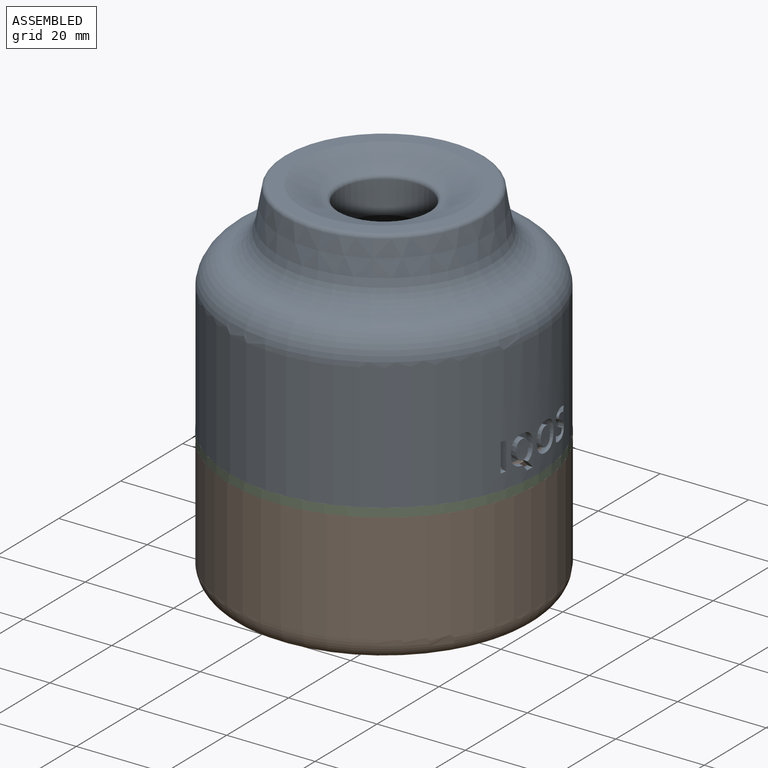
[diagram: assembled view]
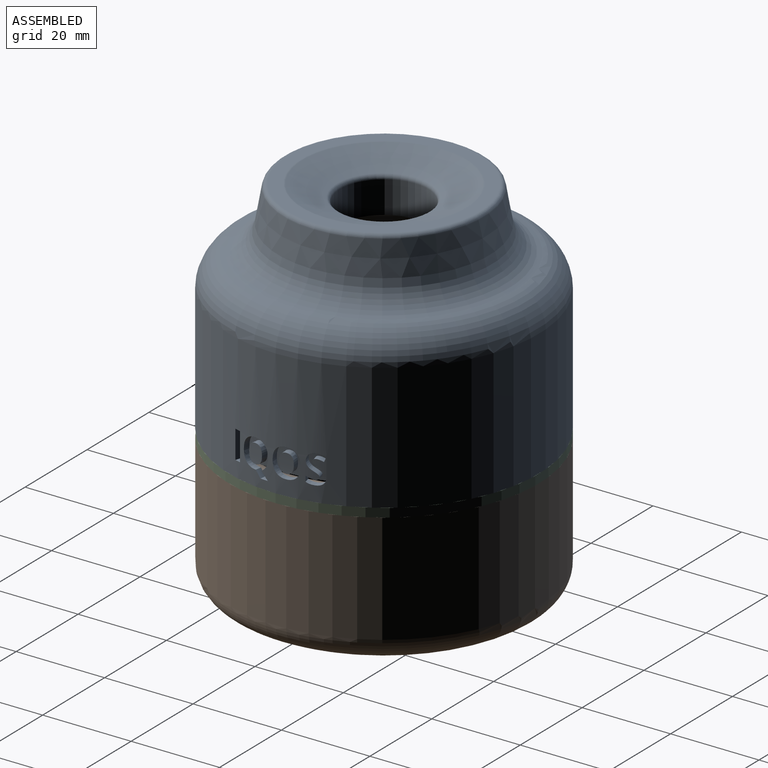
[diagram: assembled view, second angle]
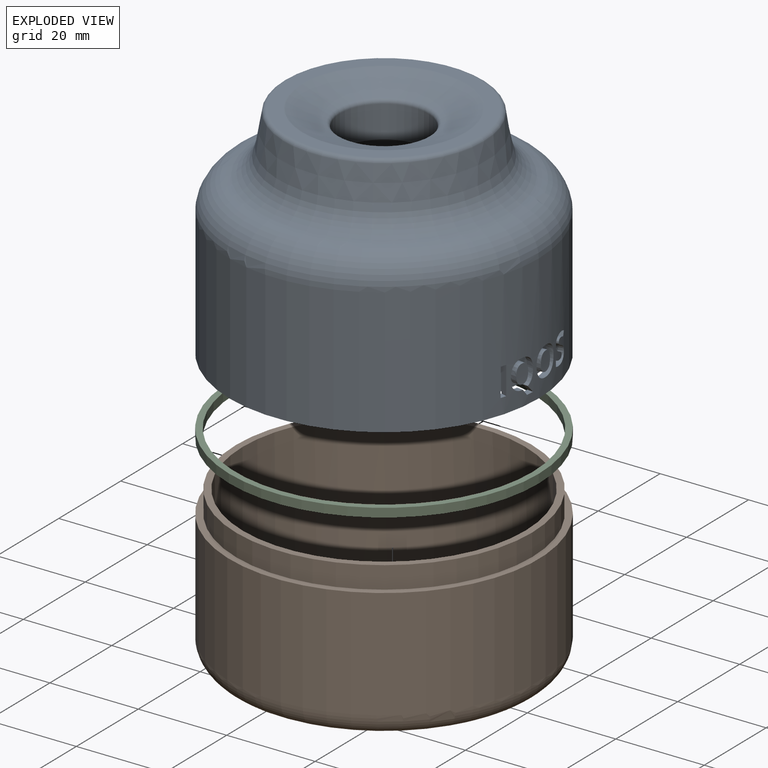
[diagram: exploded view]
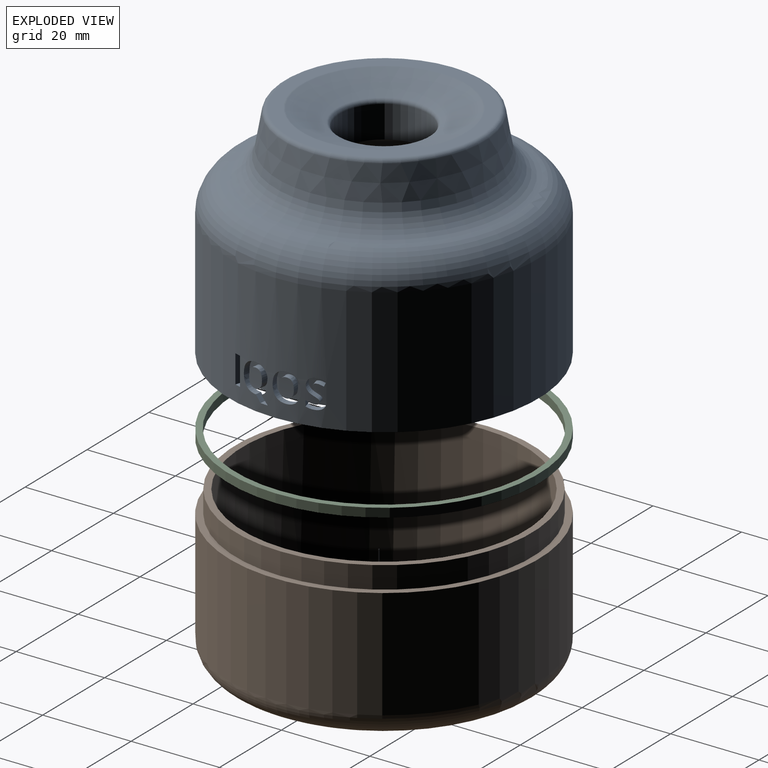
[diagram: exploded view, second angle]
ASSEMBLY  parts=3 mates=4
PART A: 87 faces, bbox 75.8x75.8x50 mm
  f0: cylinder r=35mm len=70mm, axis (0,0,-1), area 6195.6mm2, adj f6,f9,f17,f18,f19,f21,f22,f23
  f1: cylinder r=32mm len=64mm, axis (0,0,-1), area 5431mm2, adj f5,f15
  f2: plane 43.32x43.32mm, normal (0,0,1), area 378.2mm2, adj f11,f13
  f3: cone r=10mm half-angle=70deg, axis (0,0,1), area 744mm2, adj f11,f12
  f4: cylinder r=10mm len=20mm, axis (0,0,-1), area 458.7mm2, adj f12,f16
  f5: cone r=10mm half-angle=75deg, axis (0,0,-1), area 2867.4mm2, adj f1,f16
  f6: plane 70x70mm, normal (0,0,-1), area 301.7mm2, adj f0,f14
  f7: cone r=24.78mm half-angle=75deg, axis (0,0,-1), area 9.4mm2, adj f9,f10
  f8: cone r=22.5mm half-angle=10deg, axis (0,0,-1), area 1097mm2, adj f10,f13
  f9: torus R=27.5mm, axis (0,0,1), area 2037.7mm2, adj f0,f7
  f10: torus R=31.33mm, axis (0,0,-1), area 1395.1mm2, adj f7,f8
  f11: torus R=18.68mm, axis (0,0,-1), area 40.6mm2, adj f2,f3
  f12: torus R=11mm, axis (0,0,1), area 78.5mm2, adj f3,f4
  f13: torus R=21.66mm, axis (0,0,-1), area 195.2mm2, adj f2,f8
  f14: cylinder r=33.6mm len=67.2mm, axis (0,0,-1), area 837mm2, adj f6,f15,f17,f18,f19,f22,f23,f24
  f15: plane 67.2x67.2mm, normal (0,0,-1), area 328.5mm2, adj f1,f14,f18,f19,f20,f26,f27,f28
  f16: cone r=10mm half-angle=37.5deg, axis (0,0,-1), area 218.7mm2, adj f4,f5
  f17: plane 1.71x1.69mm, normal (0,0,1), area 1.9mm2, adj f0,f14,f18,f19
  f18: plane 6.38x1.44mm, normal (0.27,0.96,0), area 9.5mm2, adj f0,f14,f15,f17,f20,f21
  f19: plane 6.38x1.44mm, normal (-0.27,-0.96,0), area 9.5mm2, adj f0,f14,f15,f17,f20,f21
  f20: cylinder r=33.5mm len=5.93mm, axis (0,0,-1), area 8mm2, adj f15,f18,f19,f21
  f21: plane 1.81x1.71mm, normal (0,0,-1), area 2mm2, adj f0,f18,f19,f20
  f22: plane 1.73x1.72mm, normal (-0.1,-0.74,-0.67), area 3.2mm2, adj f0,f14,f23,f26
  f23: plane 1.92x1.52mm, normal (0,0,1), area 2.4mm2, adj f0,f14,f22,f24
  f24: plane 1.53x1.43mm, normal (0.11,0.77,0.63), area 2.6mm2, adj f0,f14,f23,f25
  f25: plane 1.4x0.29mm, normal (0,0,1), area 0.1mm2, adj f0,f14,f24,f27
  f26: extruded ~1.72x1.38mm, area 2.4mm2, adj f0,f14,f15,f22,f28,f31
  f27: extruded ~2.45x1.87mm, area 3.5mm2, adj f0,f14,f15,f25,f28,f32
  f28: cylinder r=33.5mm len=6.03mm, axis (0,0,-1), area 20.3mm2, adj f15,f26,f27,f29,f30,f31,f32,f33
  f29: extruded ~2.44x1.87mm, area 3.7mm2, adj f0,f28,f30,f34
  f30: extruded ~2.43x1.66mm, area 3.9mm2, adj f0,f28,f29,f31
  f31: extruded ~1.89x1.58mm, area 2.9mm2, adj f0,f26,f28,f30
  f32: extruded ~2.44x1.66mm, area 4mm2, adj f0,f27,f28,f33
  f33: extruded ~2.43x1.66mm, area 3.9mm2, adj f0,f28,f32,f34
  f34: extruded ~2.45x1.87mm, area 3.7mm2, adj f0,f28,f29,f33
  f35: extruded ~2.15x1.81mm, area 4.6mm2, adj f28,f36,f40,f85
  f36: extruded ~2.15x1.81mm, area 4.6mm2, adj f28,f35,f37,f85
  f37: extruded ~1.67x1.41mm, area 2.1mm2, adj f28,f36,f38,f85
  f38: extruded ~1.61x1.56mm, area 2.5mm2, adj f28,f37,f39,f85
  f39: extruded ~1.61x1.56mm, area 2.5mm2, adj f28,f38,f40,f85
  f40: extruded ~1.68x1.41mm, area 2.1mm2, adj f28,f35,f39,f85
  f41: extruded ~2.35x1.72mm, area 3.5mm2, adj f0,f14,f15,f42,f43,f46
  f42: extruded ~2.35x1.73mm, area 3.5mm2, adj f0,f14,f15,f41,f43,f47
  f43: cylinder r=33.5mm len=6.06mm, axis (0,0,-1), area 20.5mm2, adj f15,f41,f42,f44,f45,f46,f47,f48
  f44: extruded ~2.35x1.72mm, area 3.7mm2, adj f0,f43,f45,f49
  f45: extruded ~2.43x1.61mm, area 3.9mm2, adj f0,f43,f44,f46
  f46: extruded ~2.44x1.61mm, area 3.9mm2, adj f0,f41,f43,f45
  f47: extruded ~2.44x1.62mm, area 4mm2, adj f0,f42,f43,f48
  f48: extruded ~2.43x1.62mm, area 3.9mm2, adj f0,f43,f47,f49
  f49: extruded ~2.36x1.73mm, area 3.7mm2, adj f0,f43,f44,f48
  f50: extruded ~2.15x1.71mm, area 4.6mm2, adj f43,f51,f55,f86
  f51: extruded ~2.15x1.72mm, area 4.6mm2, adj f43,f50,f52,f86
  f52: extruded ~1.6x1.31mm, area 2.1mm2, adj f43,f51,f53,f86
  f53: extruded ~1.61x1.54mm, area 2.5mm2, adj f43,f52,f54,f86
  f54: extruded ~1.61x1.54mm, area 2.5mm2, adj f43,f53,f55,f86
  f55: extruded ~1.6x1.32mm, area 2.1mm2, adj f43,f50,f54,f86
  f56: extruded ~2.11x1.86mm, area 2.6mm2, adj f0,f14,f57,f58
  f57: extruded ~2.02x1.8mm, area 2.6mm2, adj f0,f14,f56,f59
  f58: plane 1.46x1.26mm, normal (-0.24,0.97,0), area 1.9mm2, adj f0,f14,f15,f56,f60,f82
  f59: extruded ~1.64x1.36mm, area 2.3mm2, adj f0,f14,f15,f57,f60,f83
  f60: cylinder r=33.5mm len=6.02mm, axis (0,0,-1), area 13.7mm2, adj f15,f58,f59,f61,f62,f63,f64,f65
  f61: extruded ~1.66x1.19mm, area 1.5mm2, adj f0,f60,f62,f84
  f62: extruded ~1.52x0.62mm, area 0.6mm2, adj f0,f60,f61,f63
  f63: extruded ~1.48x0.44mm, area 0.5mm2, adj f0,f60,f62,f64
  f64: extruded ~1.51x0.56mm, area 0.8mm2, adj f0,f60,f63,f65
  f65: extruded ~1.6x0.94mm, area 0.9mm2, adj f0,f60,f64,f66
  f66: extruded ~1.62x1mm, area 1mm2, adj f0,f60,f65,f67
  f67: extruded ~1.69x1.19mm, area 1.3mm2, adj f0,f60,f66,f68
  f68: plane 1.58x1.05mm, normal (0.22,-0.9,0.38), area 1.7mm2, adj f0,f60,f67,f69
  f69: extruded ~1.73x1.29mm, area 1.5mm2, adj f0,f60,f68,f70
  f70: extruded ~1.7x1.29mm, area 1.4mm2, adj f0,f60,f69,f71
  f71: extruded ~1.91x1.87mm, area 2.5mm2, adj f0,f60,f70,f72
  f72: extruded ~1.63x1.33mm, area 2.3mm2, adj f0,f60,f71,f73
  f73: extruded ~1.51x0.78mm, area 1.2mm2, adj f0,f60,f72,f74
  f74: extruded ~1.59x0.82mm, area 1.1mm2, adj f0,f60,f73,f75
  f75: extruded ~1.69x1.22mm, area 1.5mm2, adj f0,f60,f74,f76
  f76: extruded ~1.66x1.17mm, area 1.4mm2, adj f0,f60,f75,f77
  f77: extruded ~1.53x0.66mm, area 0.6mm2, adj f0,f60,f76,f78
  f78: extruded ~1.48x0.46mm, area 0.5mm2, adj f0,f60,f77,f79
  f79: extruded ~1.52x0.59mm, area 0.9mm2, adj f0,f60,f78,f80
  f80: extruded ~1.62x1.03mm, area 1.1mm2, adj f0,f60,f79,f81
  f81: extruded ~1.67x1.16mm, area 1.2mm2, adj f0,f60,f80,f82
  f82: extruded ~1.77x1.44mm, area 1.8mm2, adj f0,f58,f60,f81
  f83: extruded ~1.56x1.05mm, area 1.7mm2, adj f0,f59,f60,f84
  f84: extruded ~1.79x1.56mm, area 2.3mm2, adj f0,f60,f61,f83
  f85: cylinder r=35mm len=4.31mm, axis (0,0,-1), area 11mm2, adj f35,f36,f37,f38,f39,f40
  f86: cylinder r=35mm len=4.31mm, axis (0,0,-1), area 11mm2, adj f50,f51,f52,f53,f54,f55
PART B: 9 faces, bbox 75.8x75.8x35 mm
  f0: cylinder r=35mm len=70mm, axis (0,0,-1), area 5497.8mm2, adj f1,f3
  f1: plane 70x70mm, normal (0,0,1), area 322.8mm2, adj f0,f4
  f2: plane 60x60mm, normal (0,0,-1), area 2827.4mm2, adj f3
  f3: torus R=30mm, axis (0,0,-1), area 1637.5mm2, adj f0,f2
  f4: cylinder r=33.5mm len=67mm, axis (0,0,-1), area 1052.4mm2, adj f1,f5
  f5: plane 67x67mm, normal (0,0,1), area 308.7mm2, adj f4,f8
  f6: plane 60x60mm, normal (0,0,1), area 2827.4mm2, adj f7
  f7: torus R=30mm, axis (0,0,-1), area 617.3mm2, adj f6,f8
  f8: cylinder r=32mm len=64mm, axis (0,0,-1), area 6031.9mm2, adj f5,f7
PART C: 4 faces, bbox 70x70x2 mm
  f0: cylinder r=33.6mm len=67.2mm, axis (0,0,-1), area 422.2mm2, adj f2,f3
  f1: cylinder r=35mm len=70mm, axis (0,0,-1), area 439.8mm2, adj f2,f3
  f2: plane 70x70mm, normal (0,0,1), area 301.7mm2, adj f0,f1
  f3: plane 70x70mm, normal (0,0,-1), area 301.7mm2, adj f0,f1
PLACE A t=(107.34,80.34,21.1)mm
PLACE B t=(107.34,80.34,-10.9)mm
PLACE C t=(107.34,80.34,19.1)mm
MATE revolute B.f4 <-> C.f1  axis (0,0,1) through (107.34,80.34,19.1)mm
MATE planar C.f0 <-> B.f4  axis (0,0,-1) through (107.34,80.34,19.1)mm
MATE planar C.f0 <-> B.f4  axis (0,0,-1) through (107.34,80.34,19.1)mm
MATE revolute C.f0 <-> A.f14  axis (0,0,1) through (107.34,80.34,21.1)mm
